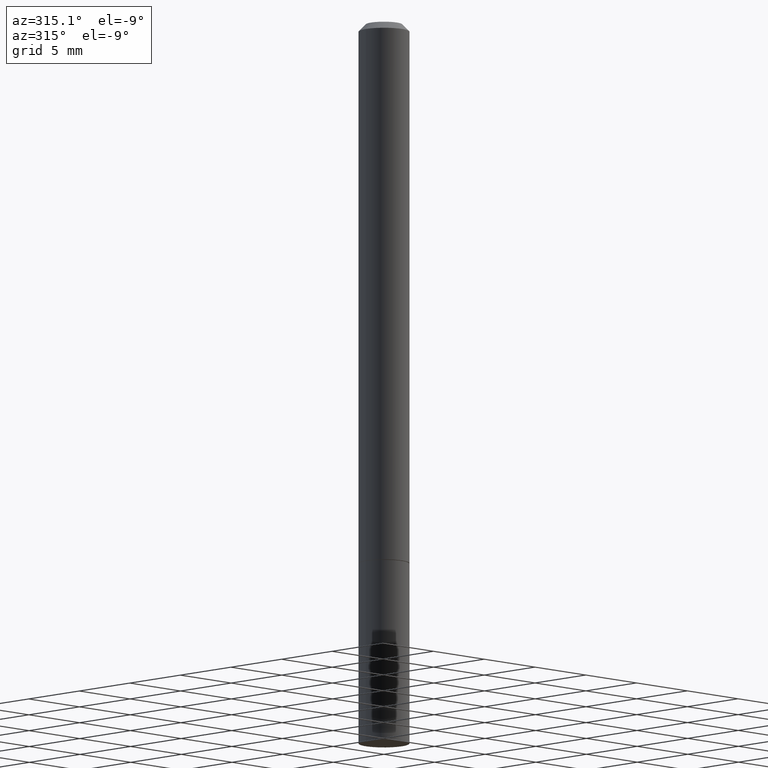
[diagram: clean part render]
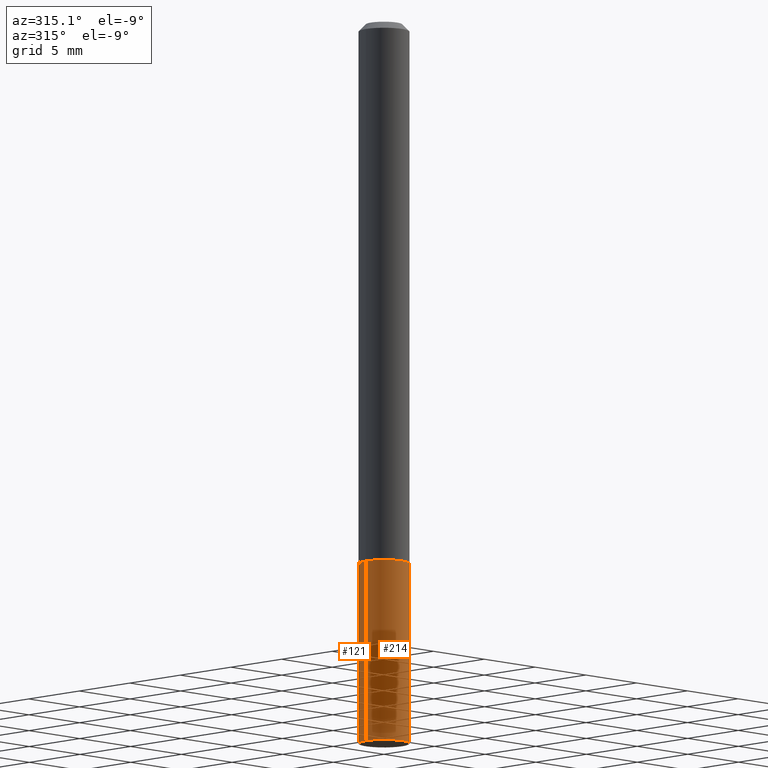
[diagram: same view with one multi-face feature highlighted, each face labeled with its STEP entity id]
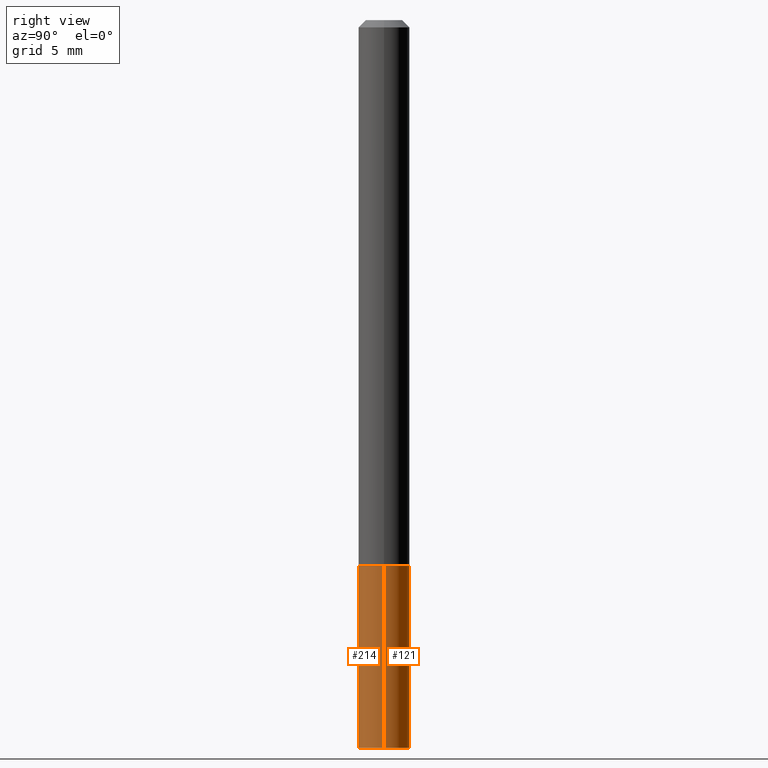
[diagram: same view with one multi-face feature highlighted, each face labeled with its STEP entity id]
A machine part, auxiliary view. The highlighted faces form ONE feature: a constant-radius fillet chain: 2 tangent blend faces with common blend radius 1.7856 mm. The faces share edges in the B-rep.
A second angle (right view) of the same feature is appended — it is thin or edge-on in the first view.
Their STEP definitions:
[1] entity #121 (Cylinder):
#1 = AXIS2_PLACEMENT_3D ( 'NONE', #193, #353, #11 ) ;
#5 = EDGE_CURVE ( 'NONE', #18, #185, #114, .T. ) ;
#7 = VERTEX_POINT ( 'NONE', #132 ) ;
#11 = DIRECTION ( 'NONE',  ( 1.000000000000000000, -6.982962677686265133E-15, 0.000000000000000000 ) ) ;
#18 = VERTEX_POINT ( 'NONE', #278 ) ;
#19 = CARTESIAN_POINT ( 'NONE',  ( -0.07030000000000000138, 4.995115432393504404E-16, -3.458011368449198869E-30 ) ) ;
#32 = AXIS2_PLACEMENT_3D ( 'NONE', #160, #315, #376 ) ;
#43 = LINE ( 'NONE', #19, #237 ) ;
#58 = VECTOR ( 'NONE', #111, 39.37007874015748143 ) ;
#79 = EDGE_CURVE ( 'NONE', #314, #18, #87, .T. ) ;
#87 = LINE ( 'NONE', #253, #58 ) ;
#95 = ORIENTED_EDGE ( 'NONE', *, *, #331, .T. ) ;
#99 = CARTESIAN_POINT ( 'NONE',  ( 0.07030000000000004301, -7.465255686929629633E-15, -2.000000000000000000 ) ) ;
#111 = DIRECTION ( 'NONE',  ( -2.445468806185136877E-29, 3.491481338843145188E-15, 1.000000000000000000 ) ) ;
#114 = CIRCLE ( 'NONE', #1, 0.07030000000000000138 ) ;
#121 = ADVANCED_FACE ( 'NONE', ( #201 ), #161, .T. ) ;
#131 = CARTESIAN_POINT ( 'NONE',  ( -0.07030000000000000138, -5.610580799736154033E-15, -1.499999999999999778 ) ) ;
#132 = CARTESIAN_POINT ( 'NONE',  ( -0.07030000000000004301, -6.492060401444947007E-15, -2.000000000000000000 ) ) ;
#138 = ORIENTED_EDGE ( 'NONE', *, *, #5, .F. ) ;
#157 = DIRECTION ( 'NONE',  ( -2.445468806185136597E-29, 3.491481338843145583E-15, 1.000000000000000000 ) ) ;
#160 = CARTESIAN_POINT ( 'NONE',  ( 4.890937612370273194E-29, -6.982962677686291165E-15, -2.000000000000000000 ) ) ;
#161 = CYLINDRICAL_SURFACE ( 'NONE', #198, 0.07030000000000000138 ) ;
#168 = DIRECTION ( 'NONE',  ( -2.445468806185136877E-29, 3.491481338843145188E-15, 1.000000000000000000 ) ) ;
#185 = VERTEX_POINT ( 'NONE', #131 ) ;
#193 = CARTESIAN_POINT ( 'NONE',  ( 3.668203209277704335E-29, -5.237222008264717388E-15, -1.499999999999999778 ) ) ;
#198 = AXIS2_PLACEMENT_3D ( 'NONE', #296, #157, #316 ) ;
#201 = FACE_OUTER_BOUND ( 'NONE', #250, .T. ) ;
#206 = CIRCLE ( 'NONE', #32, 0.07030000000000000138 ) ;
#237 = VECTOR ( 'NONE', #168, 39.37007874015748143 ) ;
#249 = ORIENTED_EDGE ( 'NONE', *, *, #305, .T. ) ;
#250 = EDGE_LOOP ( 'NONE', ( #249, #95, #138, #379 ) ) ;
#253 = CARTESIAN_POINT ( 'NONE',  ( 0.07030000000000000138, -4.909022762413445529E-16, 3.427952273384543137E-30 ) ) ;
#278 = CARTESIAN_POINT ( 'NONE',  ( 0.07030000000000000138, -5.728124284506062335E-15, -1.499999999999999778 ) ) ;
#296 = CARTESIAN_POINT ( 'NONE',  ( 0.000000000000000000, 0.000000000000000000, 0.000000000000000000 ) ) ;
#305 = EDGE_CURVE ( 'NONE', #314, #7, #206, .T. ) ;
#314 = VERTEX_POINT ( 'NONE', #99 ) ;
#315 = DIRECTION ( 'NONE',  ( -2.445468806185136597E-29, 3.491481338843145583E-15, 1.000000000000000000 ) ) ;
#316 = DIRECTION ( 'NONE',  ( 1.000000000000000000, -6.982962677686266711E-15, 4.876176775795936353E-29 ) ) ;
#331 = EDGE_CURVE ( 'NONE', #7, #185, #43, .T. ) ;
#353 = DIRECTION ( 'NONE',  ( -2.445468806185136597E-29, 3.491481338843145583E-15, 1.000000000000000000 ) ) ;
#376 = DIRECTION ( 'NONE',  ( 1.000000000000000000, -6.982962677686265133E-15, 0.000000000000000000 ) ) ;
#379 = ORIENTED_EDGE ( 'NONE', *, *, #79, .F. ) ;
[2] entity #214 (Cylinder):
#7 = VERTEX_POINT ( 'NONE', #132 ) ;
#18 = VERTEX_POINT ( 'NONE', #278 ) ;
#19 = CARTESIAN_POINT ( 'NONE',  ( -0.07030000000000000138, 4.995115432393504404E-16, -3.458011368449198869E-30 ) ) ;
#41 = DIRECTION ( 'NONE',  ( 1.000000000000000000, -6.982962677686265133E-15, 0.000000000000000000 ) ) ;
#43 = LINE ( 'NONE', #19, #237 ) ;
#44 = DIRECTION ( 'NONE',  ( -2.445468806185136597E-29, 3.491481338843145583E-15, 1.000000000000000000 ) ) ;
#45 = ORIENTED_EDGE ( 'NONE', *, *, #331, .F. ) ;
#58 = VECTOR ( 'NONE', #111, 39.37007874015748143 ) ;
#69 = ORIENTED_EDGE ( 'NONE', *, *, #105, .F. ) ;
#76 = DIRECTION ( 'NONE',  ( -2.445468806185136597E-29, 3.491481338843145583E-15, 1.000000000000000000 ) ) ;
#79 = EDGE_CURVE ( 'NONE', #314, #18, #87, .T. ) ;
#86 = AXIS2_PLACEMENT_3D ( 'NONE', #224, #44, #41 ) ;
#87 = LINE ( 'NONE', #253, #58 ) ;
#99 = CARTESIAN_POINT ( 'NONE',  ( 0.07030000000000004301, -7.465255686929629633E-15, -2.000000000000000000 ) ) ;
#105 = EDGE_CURVE ( 'NONE', #185, #18, #371, .T. ) ;
#111 = DIRECTION ( 'NONE',  ( -2.445468806185136877E-29, 3.491481338843145188E-15, 1.000000000000000000 ) ) ;
#126 = CIRCLE ( 'NONE', #152, 0.07030000000000000138 ) ;
#131 = CARTESIAN_POINT ( 'NONE',  ( -0.07030000000000000138, -5.610580799736154033E-15, -1.499999999999999778 ) ) ;
#132 = CARTESIAN_POINT ( 'NONE',  ( -0.07030000000000004301, -6.492060401444947007E-15, -2.000000000000000000 ) ) ;
#145 = EDGE_CURVE ( 'NONE', #7, #314, #126, .T. ) ;
#152 = AXIS2_PLACEMENT_3D ( 'NONE', #235, #232, #343 ) ;
#168 = DIRECTION ( 'NONE',  ( -2.445468806185136877E-29, 3.491481338843145188E-15, 1.000000000000000000 ) ) ;
#169 = CARTESIAN_POINT ( 'NONE',  ( 0.000000000000000000, 0.000000000000000000, 0.000000000000000000 ) ) ;
#184 = ORIENTED_EDGE ( 'NONE', *, *, #145, .T. ) ;
#185 = VERTEX_POINT ( 'NONE', #131 ) ;
#214 = ADVANCED_FACE ( 'NONE', ( #381 ), #348, .T. ) ;
#217 = AXIS2_PLACEMENT_3D ( 'NONE', #169, #76, #377 ) ;
#224 = CARTESIAN_POINT ( 'NONE',  ( 3.668203209277704335E-29, -5.237222008264717388E-15, -1.499999999999999778 ) ) ;
#232 = DIRECTION ( 'NONE',  ( -2.445468806185136597E-29, 3.491481338843145583E-15, 1.000000000000000000 ) ) ;
#235 = CARTESIAN_POINT ( 'NONE',  ( 4.890937612370273194E-29, -6.982962677686291165E-15, -2.000000000000000000 ) ) ;
#237 = VECTOR ( 'NONE', #168, 39.37007874015748143 ) ;
#253 = CARTESIAN_POINT ( 'NONE',  ( 0.07030000000000000138, -4.909022762413445529E-16, 3.427952273384543137E-30 ) ) ;
#278 = CARTESIAN_POINT ( 'NONE',  ( 0.07030000000000000138, -5.728124284506062335E-15, -1.499999999999999778 ) ) ;
#314 = VERTEX_POINT ( 'NONE', #99 ) ;
#331 = EDGE_CURVE ( 'NONE', #7, #185, #43, .T. ) ;
#343 = DIRECTION ( 'NONE',  ( 1.000000000000000000, -6.982962677686265133E-15, 0.000000000000000000 ) ) ;
#348 = CYLINDRICAL_SURFACE ( 'NONE', #217, 0.07030000000000000138 ) ;
#371 = CIRCLE ( 'NONE', #86, 0.07030000000000000138 ) ;
#372 = EDGE_LOOP ( 'NONE', ( #45, #184, #390, #69 ) ) ;
#377 = DIRECTION ( 'NONE',  ( 1.000000000000000000, -6.982962677686266711E-15, 4.876176775795936353E-29 ) ) ;
#381 = FACE_OUTER_BOUND ( 'NONE', #372, .T. ) ;
#390 = ORIENTED_EDGE ( 'NONE', *, *, #79, .T. ) ;